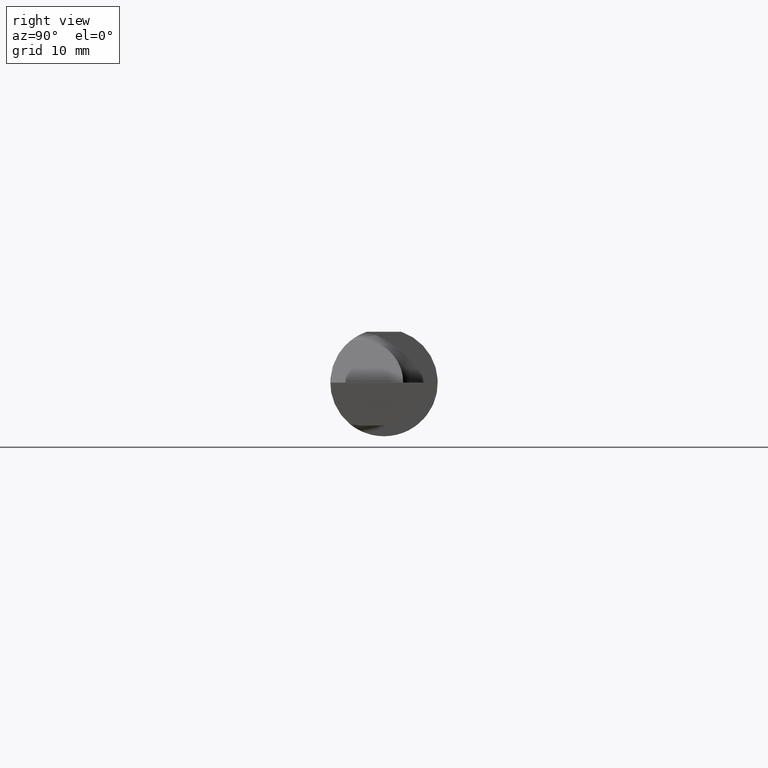
[diagram: clean part render]
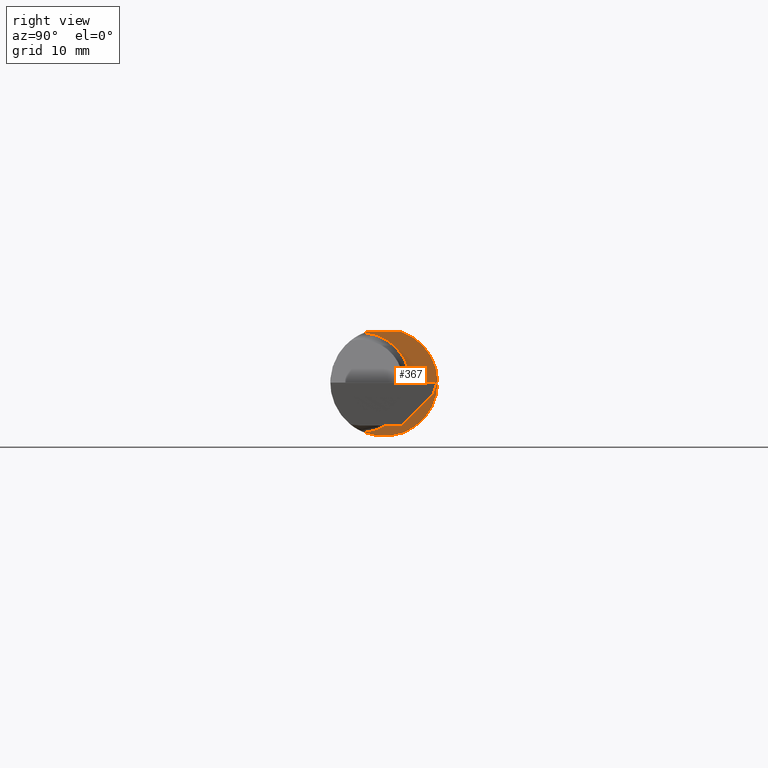
[diagram: same view with one face highlighted and labeled with its STEP entity id]
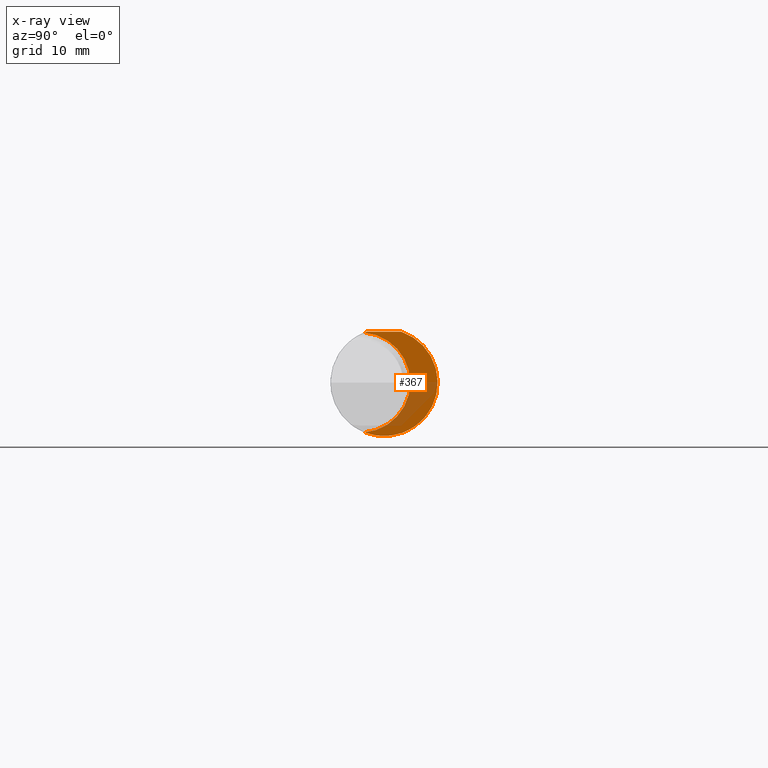
[diagram: x-ray of the same camera — body ghosted, the highlighted face saturated]
A machine part, right view. The second image highlights one B-rep face of the part: STEP entity #367.
The next image is the same camera in x-ray: the body ghosted, the highlighted face saturated — about 27% of this face is hidden behind the body in this view.
In plain terms, the highlighted planar face has unit normal (1, 0, 0).
Its self-contained STEP definition (entity closure, byte-faithful):
#41 = AXIS2_PLACEMENT_3D ( 'NONE', #417, #345, #327 ) ;
#88 = VERTEX_POINT ( 'NONE', #209 ) ;
#138 = ORIENTED_EDGE ( 'NONE', *, *, #647, .F. ) ;
#139 = CARTESIAN_POINT ( 'NONE',  ( 2.075000000000000178, -0.1873500000000000443, 0.1773499999999999799 ) ) ;
#148 = CIRCLE ( 'NONE', #268, 0.1873499999999999888 ) ;
#209 = CARTESIAN_POINT ( 'NONE',  ( 2.075000000000000178, -0.06851976604679065053, -0.1743704796142198643 ) ) ;
#218 = CARTESIAN_POINT ( 'NONE',  ( 2.075000000000000178, -0.06851976604679065053, 0.1743704796142198643 ) ) ;
#226 = PLANE ( 'NONE',  #714 ) ;
#268 = AXIS2_PLACEMENT_3D ( 'NONE', #689, #701, #480 ) ;
#270 = AXIS2_PLACEMENT_3D ( 'NONE', #479, #910, #539 ) ;
#280 = FACE_OUTER_BOUND ( 'NONE', #731, .T. ) ;
#287 = DIRECTION ( 'NONE',  ( 1.000000000000000000, 4.493171042210958884E-17, 0.000000000000000000 ) ) ;
#324 = EDGE_CURVE ( 'NONE', #88, #686, #148, .T. ) ;
#327 = DIRECTION ( 'NONE',  ( 0.000000000000000000, 1.000000000000000000, 0.000000000000000000 ) ) ;
#345 = DIRECTION ( 'NONE',  ( 1.000000000000000000, 4.493171042210958884E-17, 0.000000000000000000 ) ) ;
#366 = ORIENTED_EDGE ( 'NONE', *, *, #594, .T. ) ;
#367 = ADVANCED_FACE ( 'NONE', ( #280 ), #226, .T. ) ;
#373 = ORIENTED_EDGE ( 'NONE', *, *, #324, .T. ) ;
#417 = CARTESIAN_POINT ( 'NONE',  ( 2.075000000000000178, 0.000000000000000000, 0.000000000000000000 ) ) ;
#452 = CIRCLE ( 'NONE', #41, 0.1873499999999999888 ) ;
#454 = EDGE_CURVE ( 'NONE', #711, #88, #909, .T. ) ;
#479 = CARTESIAN_POINT ( 'NONE',  ( 2.075000000000000178, -0.08334999999999996578, 0.000000000000000000 ) ) ;
#480 = DIRECTION ( 'NONE',  ( 0.000000000000000000, 1.000000000000000000, 0.000000000000000000 ) ) ;
#539 = DIRECTION ( 'NONE',  ( 0.000000000000000000, -1.000000000000000000, 0.000000000000000000 ) ) ;
#561 = CARTESIAN_POINT ( 'NONE',  ( 2.075000000000000178, -0.06039039658753699025, 0.1773499999999999799 ) ) ;
#594 = EDGE_CURVE ( 'NONE', #792, #711, #452, .T. ) ;
#628 = DIRECTION ( 'NONE',  ( -4.493171042210958884E-17, 1.000000000000000000, 0.000000000000000000 ) ) ;
#631 = DIRECTION ( 'NONE',  ( -4.493171042210958884E-17, 1.000000000000000000, 0.000000000000000000 ) ) ;
#645 = CARTESIAN_POINT ( 'NONE',  ( 2.075000000000000178, 0.2666500000000000536, 0.000000000000000000 ) ) ;
#647 = EDGE_CURVE ( 'NONE', #792, #686, #772, .T. ) ;
#683 = VECTOR ( 'NONE', #631, 39.37007874015748143 ) ;
#686 = VERTEX_POINT ( 'NONE', #708 ) ;
#689 = CARTESIAN_POINT ( 'NONE',  ( 2.075000000000000178, 0.000000000000000000, 0.000000000000000000 ) ) ;
#701 = DIRECTION ( 'NONE',  ( 1.000000000000000000, 4.493171042210958884E-17, 0.000000000000000000 ) ) ;
#708 = CARTESIAN_POINT ( 'NONE',  ( 2.075000000000000178, 0.06039039658754216666, 0.1773499999999999799 ) ) ;
#711 = VERTEX_POINT ( 'NONE', #218 ) ;
#714 = AXIS2_PLACEMENT_3D ( 'NONE', #645, #287, #628 ) ;
#731 = EDGE_LOOP ( 'NONE', ( #373, #138, #366, #907 ) ) ;
#772 = LINE ( 'NONE', #139, #683 ) ;
#792 = VERTEX_POINT ( 'NONE', #561 ) ;
#907 = ORIENTED_EDGE ( 'NONE', *, *, #454, .T. ) ;
#909 = CIRCLE ( 'NONE', #270, 0.1749999999999999889 ) ;
#910 = DIRECTION ( 'NONE',  ( -1.000000000000000000, -4.493171042210958884E-17, -0.000000000000000000 ) ) ;